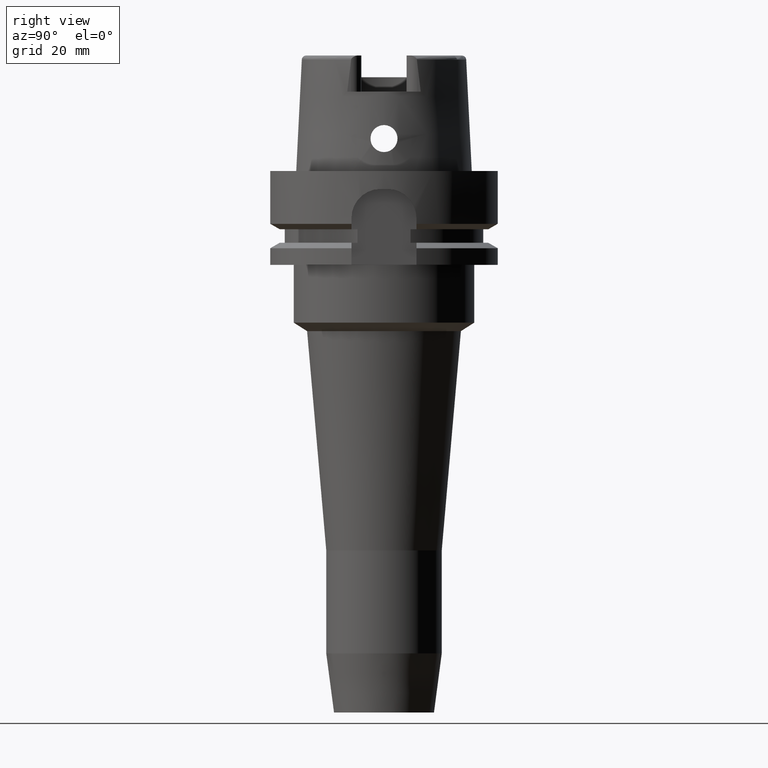
[diagram: clean part render]
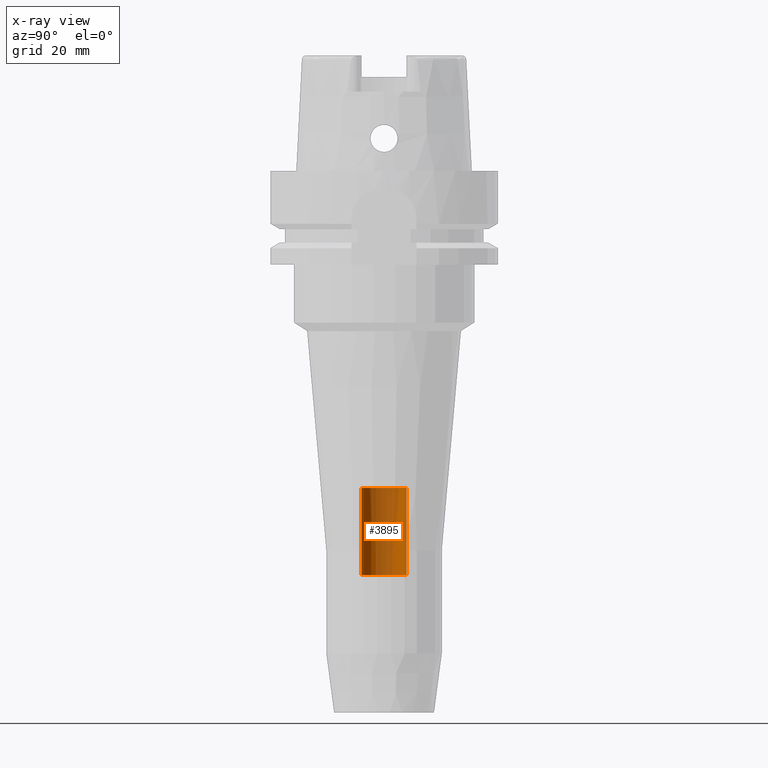
[diagram: x-ray — body ghosted, one internal face saturated and labeled with its STEP entity id]
A machine part, right view, then the same camera in x-ray: the body is ghosted and one INTERNAL B-rep face — a face not visible from any outside direction — is saturated and labeled: STEP entity #3895.
In plain terms, the highlighted cylindrical surface (edge-blend (fillet) strip) has radius 6.25 mm, axis along (0, 0, 1).
Its self-contained STEP definition (entity closure, byte-faithful):
#1789=CARTESIAN_POINT('',(0.E0,0.E0,-1.12E2));
#1790=DIRECTION('',(0.E0,0.E0,-1.E0));
#1791=DIRECTION('',(0.E0,-1.E0,0.E0));
#1792=AXIS2_PLACEMENT_3D('',#1789,#1790,#1791);
#1821=DIRECTION('',(0.E0,0.E0,1.E0));
#1822=VECTOR('',#1821,2.42E1);
#1823=CARTESIAN_POINT('',(0.E0,-6.25E0,-1.12E2));
#1824=LINE('',#1823,#1822);
#1828=DIRECTION('',(0.E0,0.E0,1.E0));
#1829=VECTOR('',#1828,2.42E1);
#1830=CARTESIAN_POINT('',(0.E0,6.25E0,-1.12E2));
#1831=LINE('',#1830,#1829);
#1843=CARTESIAN_POINT('',(0.E0,0.E0,-8.78E1));
#1844=DIRECTION('',(0.E0,0.E0,1.E0));
#1845=DIRECTION('',(0.E0,1.E0,0.E0));
#1846=AXIS2_PLACEMENT_3D('',#1843,#1844,#1845);
#2444=CARTESIAN_POINT('',(0.E0,-6.25E0,-8.78E1));
#2445=CARTESIAN_POINT('',(0.E0,6.25E0,-8.78E1));
#2446=VERTEX_POINT('',#2444);
#2447=VERTEX_POINT('',#2445);
#2448=CARTESIAN_POINT('',(0.E0,6.25E0,-1.12E2));
#2449=VERTEX_POINT('',#2448);
#2450=CARTESIAN_POINT('',(0.E0,-6.25E0,-1.12E2));
#2451=VERTEX_POINT('',#2450);
#3881=CARTESIAN_POINT('',(0.E0,0.E0,-1.591E2));
#3882=DIRECTION('',(0.E0,0.E0,1.E0));
#3883=DIRECTION('',(0.E0,1.E0,0.E0));
#3884=AXIS2_PLACEMENT_3D('',#3881,#3882,#3883);
#3885=CYLINDRICAL_SURFACE('',#3884,6.25E0);
#3887=ORIENTED_EDGE('',*,*,#3886,.F.);
#3888=ORIENTED_EDGE('',*,*,#3870,.F.);
#3890=ORIENTED_EDGE('',*,*,#3889,.T.);
#3892=ORIENTED_EDGE('',*,*,#3891,.F.);
#3893=EDGE_LOOP('',(#3887,#3888,#3890,#3892));
#3894=FACE_OUTER_BOUND('',#3893,.F.);
#1793=CIRCLE('',#1792,6.25E0);
#1847=CIRCLE('',#1846,6.25E0);
#3870=EDGE_CURVE('',#2451,#2449,#1793,.T.);
#3886=EDGE_CURVE('',#2449,#2447,#1831,.T.);
#3889=EDGE_CURVE('',#2451,#2446,#1824,.T.);
#3891=EDGE_CURVE('',#2447,#2446,#1847,.T.);
#3895=ADVANCED_FACE('',(#3894),#3885,.F.);